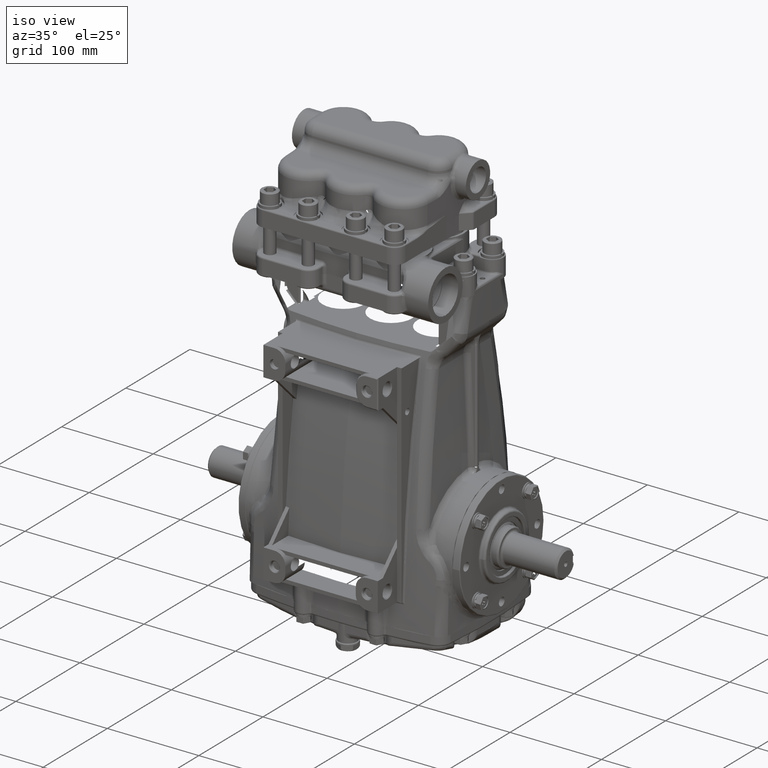
[diagram: clean part render]
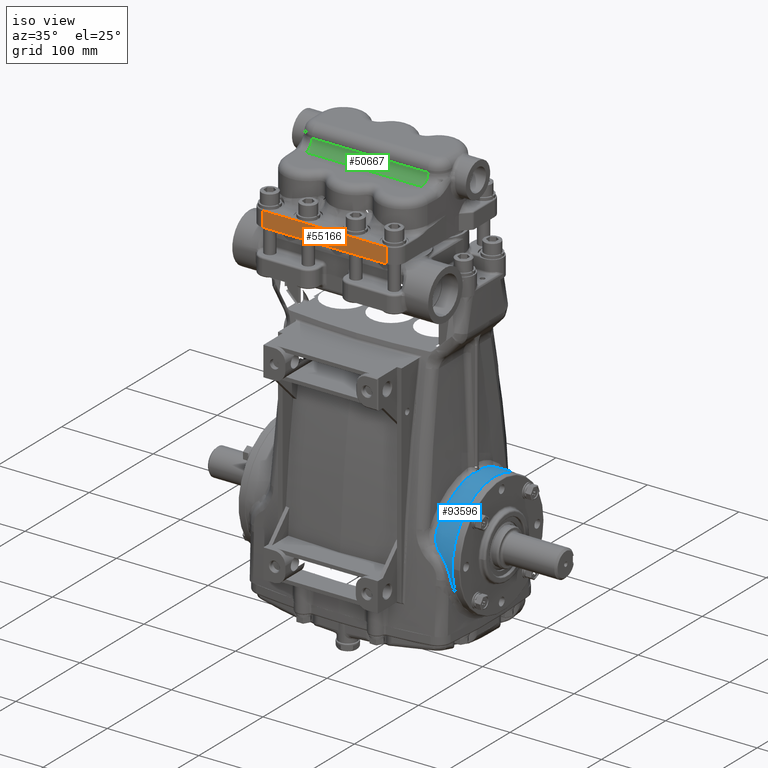
[diagram: same view with three faces highlighted in distinct colors, each labeled with its STEP entity id]
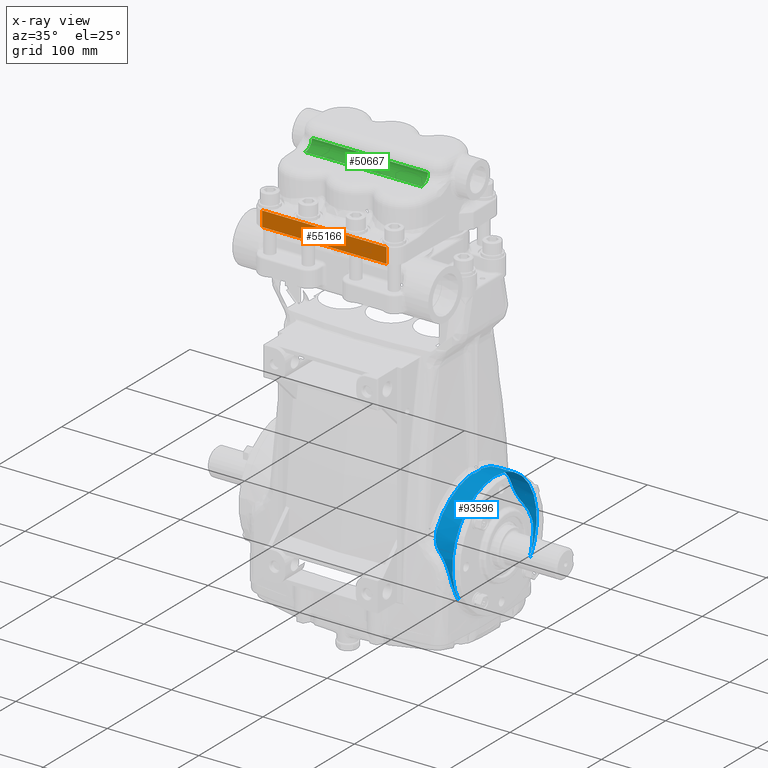
[diagram: x-ray of the same camera — body ghosted, the three highlighted faces saturated]
A machine part, iso view with three faces highlighted in distinct colors.
The next image is the same camera in x-ray (body ghosted, the three faces saturated) — at least one of them is partly hidden behind the body in this view.
Their STEP definitions:

[orange] entity #55166 — the highlighted planar face has unit normal (0, 1, 0).
#10311 = VERTEX_POINT ( 'NONE', #22771 ) ;
#12512 = DIRECTION ( 'NONE',  ( -0.000000000000000000, -0.000000000000000000, -1.000000000000000000 ) ) ;
#12684 = ORIENTED_EDGE ( 'NONE', *, *, #90015, .T. ) ;
#13723 = VERTEX_POINT ( 'NONE', #75783 ) ;
#13936 = VECTOR ( 'NONE', #12512, 39.37007874015748143 ) ;
#18706 = AXIS2_PLACEMENT_3D ( 'NONE', #65929, #65368, #31635 ) ;
#20758 = DIRECTION ( 'NONE',  ( 0.000000000000000000, -0.000000000000000000, -1.000000000000000000 ) ) ;
#22444 = DIRECTION ( 'NONE',  ( -1.000000000000000000, 0.000000000000000000, -0.000000000000000000 ) ) ;
#22771 = CARTESIAN_POINT ( 'NONE',  ( -2.677165354330708347, -4.094488188976377785, 11.94881889763779448 ) ) ;
#23007 = LINE ( 'NONE', #100765, #63014 ) ;
#23189 = LINE ( 'NONE', #93488, #13936 ) ;
#31635 = DIRECTION ( 'NONE',  ( 0.000000000000000000, -0.000000000000000000, 1.000000000000000000 ) ) ;
#33503 = DIRECTION ( 'NONE',  ( -1.000000000000000000, 0.000000000000000000, 0.000000000000000000 ) ) ;
#41197 = VERTEX_POINT ( 'NONE', #69911 ) ;
#42643 = LINE ( 'NONE', #101584, #94956 ) ;
#44732 = EDGE_CURVE ( 'NONE', #13723, #10311, #42643, .T. ) ;
#54540 = ORIENTED_EDGE ( 'NONE', *, *, #58980, .F. ) ;
#55166 = ADVANCED_FACE ( 'NONE', ( #74514 ), #73952, .F. ) ;
#56124 = CARTESIAN_POINT ( 'NONE',  ( 2.677165354330709679, -4.094488188976378673, 12.59842519685039441 ) ) ;
#58980 = EDGE_CURVE ( 'NONE', #102212, #13723, #108784, .T. ) ;
#60882 = EDGE_CURVE ( 'NONE', #41197, #10311, #23189, .T. ) ;
#61720 = VECTOR ( 'NONE', #20758, 39.37007874015748143 ) ;
#63014 = VECTOR ( 'NONE', #22444, 39.37007874015748143 ) ;
#65368 = DIRECTION ( 'NONE',  ( 0.000000000000000000, 1.000000000000000000, 0.000000000000000000 ) ) ;
#65929 = CARTESIAN_POINT ( 'NONE',  ( -2.677165354330708347, -4.094488188976377785, 12.65748031496063142 ) ) ;
#69677 = EDGE_LOOP ( 'NONE', ( #77068, #54540, #12684, #98051 ) ) ;
#69911 = CARTESIAN_POINT ( 'NONE',  ( -2.677165354330708347, -4.094488188976378673, 12.59842519685039441 ) ) ;
#73952 = PLANE ( 'NONE',  #18706 ) ;
#74514 = FACE_OUTER_BOUND ( 'NONE', #69677, .T. ) ;
#75783 = CARTESIAN_POINT ( 'NONE',  ( 2.677165354330709679, -4.094488188976377785, 11.94881889763779448 ) ) ;
#77068 = ORIENTED_EDGE ( 'NONE', *, *, #44732, .F. ) ;
#82471 = CARTESIAN_POINT ( 'NONE',  ( 2.677165354330709679, -4.094488188976378673, 12.65748031496063142 ) ) ;
#90015 = EDGE_CURVE ( 'NONE', #102212, #41197, #23007, .T. ) ;
#93488 = CARTESIAN_POINT ( 'NONE',  ( -2.677165354330708347, -4.094488188976378673, 12.65748031496063142 ) ) ;
#94956 = VECTOR ( 'NONE', #33503, 39.37007874015748143 ) ;
#98051 = ORIENTED_EDGE ( 'NONE', *, *, #60882, .T. ) ;
#100765 = CARTESIAN_POINT ( 'NONE',  ( -2.677165354330708347, -4.094488188976377785, 12.59842519685039441 ) ) ;
#101584 = CARTESIAN_POINT ( 'NONE',  ( -2.677165354330708347, -4.094488188976377785, 11.94881889763779448 ) ) ;
#102212 = VERTEX_POINT ( 'NONE', #56124 ) ;
#108784 = LINE ( 'NONE', #82471, #61720 ) ;

[blue] entity #93596 — the highlighted cylindrical surface (partial cylindrical patch) has radius 66 mm, axis along (-1, 0, 0).
#182 = CARTESIAN_POINT ( 'NONE',  ( 4.100196684445901241, -2.589612643860212060, 0.2166756735980352178 ) ) ;
#694 = CARTESIAN_POINT ( 'NONE',  ( 3.729207990982170262, -0.1660319427924202007, 2.593125323950942640 ) ) ;
#1036 = CARTESIAN_POINT ( 'NONE',  ( 3.673228346456693494, 0.2744815348785626941, 2.583887263530999956 ) ) ;
#1519 = ORIENTED_EDGE ( 'NONE', *, *, #95249, .F. ) ;
#1995 = CARTESIAN_POINT ( 'NONE',  ( 3.569998761272071164, 2.310138649027040803, 1.189645554974915642 ) ) ;
#2507 = CARTESIAN_POINT ( 'NONE',  ( 3.615937601670871970, 1.863495899834478386, 1.819654820687257368 ) ) ;
#2570 = CARTESIAN_POINT ( 'NONE',  ( 3.571504997201039089, 2.303905351523054090, 1.201672563993209097 ) ) ;
#2782 = ORIENTED_EDGE ( 'NONE', *, *, #75394, .F. ) ;
#3271 = CARTESIAN_POINT ( 'NONE',  ( 4.259151532516346705, 2.594823161770012376, -0.1427273984997916856 ) ) ;
#4825 = CARTESIAN_POINT ( 'NONE',  ( 3.820601957732636222, -2.545106093148461923, 0.5240979178874840549 ) ) ;
#5329 = B_SPLINE_CURVE_WITH_KNOTS ( 'NONE', 3,
 ( #108233, #100213, #55614, #64752 ),
 .UNSPECIFIED., .F., .F.,
 ( 4, 4 ),
 ( 0.000000000000000000, 0.009106805431550311913 ),
 .UNSPECIFIED. ) ;
#5550 = CARTESIAN_POINT ( 'NONE',  ( 4.364242892514783811, 2.452315658477773219, -0.8608875450073603108 ) ) ;
#5766 = B_SPLINE_CURVE_WITH_KNOTS ( 'NONE', 3,
 ( #78489, #103115, #24771, #86522, #76799, #25896, #8212, #95667, #43037, #77929, #69896, #112831, #182, #104814, #61335, #96233 ),
 .UNSPECIFIED., .F., .F.,
 ( 4, 2, 2, 2, 2, 2, 2, 4 ),
 ( 0.000000000000000000, 0.003364075041212588688, 0.005046112561818888453, 0.006728150082425187785, 0.01345630016485038251, 0.01682037520606298117, 0.02018445024727557463, 0.02691260032970074073 ),
 .UNSPECIFIED. ) ;
#6234 = VERTEX_POINT ( 'NONE', #77175 ) ;
#6656 = CARTESIAN_POINT ( 'NONE',  ( 4.390738189973322214, -2.488689730956064050, -0.7507419051582839842 ) ) ;
#6976 = AXIS2_PLACEMENT_3D ( 'NONE', #65132, #38244, #82299 ) ;
#7042 = CARTESIAN_POINT ( 'NONE',  ( 3.740157480314960647, -0.1056473844594978673, 2.596276590385522720 ) ) ;
#7142 = CARTESIAN_POINT ( 'NONE',  ( 3.573063166374628619, 2.297581499945722694, 1.213644410333674317 ) ) ;
#7279 = CARTESIAN_POINT ( 'NONE',  ( 3.573063166374628619, 2.297581499945722694, 1.213644410333674317 ) ) ;
#7308 = CARTESIAN_POINT ( 'NONE',  ( 4.405457163438915913, 2.344418739382989170, -1.120497335140465678 ) ) ;
#8212 = CARTESIAN_POINT ( 'NONE',  ( 4.309920876329000450, -2.587576788733757294, -0.2381237315474997451 ) ) ;
#8460 = CARTESIAN_POINT ( 'NONE',  ( 3.670475184629838683, -0.2748215353789708604, 2.583851123288443574 ) ) ;
#8717 = ORIENTED_EDGE ( 'NONE', *, *, #13009, .F. ) ;
#9019 = CARTESIAN_POINT ( 'NONE',  ( 2.491824567246672117, -0.2744815348785626941, 2.583887263530999956 ) ) ;
#9418 = VERTEX_POINT ( 'NONE', #7308 ) ;
#10033 = B_SPLINE_CURVE_WITH_KNOTS ( 'NONE', 3,
 ( #48985, #33528, #51268, #5550, #40384, #77559, #68410, #67270 ),
 .UNSPECIFIED., .F., .F.,
 ( 4, 2, 2, 4 ),
 ( 3.067469883233882672E-16, 0.008631008678426537947, 0.01294651301763963779, 0.01726201735685273936 ),
 .UNSPECIFIED. ) ;
#10582 = CARTESIAN_POINT ( 'NONE',  ( 3.568541530439711007, 2.316279602479301314, 1.177566264277869701 ) ) ;
#11097 = CARTESIAN_POINT ( 'NONE',  ( 3.603878585297783932, 2.091714425865752514, 1.541604444808107210 ) ) ;
#11162 = ORIENTED_EDGE ( 'NONE', *, *, #93903, .F. ) ;
#11530 = CARTESIAN_POINT ( 'NONE',  ( 3.673228346456693494, -0.2744815348785626941, 2.583887263530999956 ) ) ;
#11871 = CARTESIAN_POINT ( 'NONE',  ( 4.272297807952499582, 2.592245388797254968, -0.1838876951782988378 ) ) ;
#11877 = CARTESIAN_POINT ( 'NONE',  ( 3.681145462730793128, 0.2614638144021342869, 2.585270111748652067 ) ) ;
#12024 = CARTESIAN_POINT ( 'NONE',  ( 4.448740742023628236, 2.168936661308856539, -1.430918486201019801 ) ) ;
#12292 = CARTESIAN_POINT ( 'NONE',  ( 4.353619064469325117, -2.554787156879658294, -0.4742110149182088841 ) ) ;
#12833 = CARTESIAN_POINT ( 'NONE',  ( 3.601626860777447092, 2.458690778216942263, 0.8413739690559214335 ) ) ;
#12839 = VERTEX_POINT ( 'NONE', #52304 ) ;
#12972 = CARTESIAN_POINT ( 'NONE',  ( 4.417744967900954833, -2.416368676802738591, -0.9583070614932144293 ) ) ;
#12996 = CARTESIAN_POINT ( 'NONE',  ( 4.030345152111118878, 2.584141206895580023, 0.2725950478743667249 ) ) ;
#13009 = EDGE_CURVE ( 'NONE', #109135, #31369, #59504, .T. ) ;
#13356 = CARTESIAN_POINT ( 'NONE',  ( 3.634981356782269746, 1.483867568071156828, 2.133538114731842850 ) ) ;
#13401 = CARTESIAN_POINT ( 'NONE',  ( 3.640645536112663727, 2.489835945430678432, 0.7435112644587360542 ) ) ;
#13421 = DIRECTION ( 'NONE',  ( 1.000000000000000000, -0.000000000000000000, -2.542649619626401295E-33 ) ) ;
#13563 = CARTESIAN_POINT ( 'NONE',  ( 3.879585688250994036, 2.562759641923008314, 0.4290413981863067105 ) ) ;
#13963 = CARTESIAN_POINT ( 'NONE',  ( 3.633338405893422163, 2.484961283390371811, 0.7596518797531165434 ) ) ;
#15334 = CARTESIAN_POINT ( 'NONE',  ( 3.603556856310851320, -2.097800067963866866, 1.534276460122554697 ) ) ;
#15340 = VERTEX_POINT ( 'NONE', #38737 ) ;
#15499 = EDGE_CURVE ( 'NONE', #67188, #61127, #72737, .T. ) ;
#15515 = EDGE_CURVE ( 'NONE', #66623, #61127, #80826, .T. ) ;
#15721 = CARTESIAN_POINT ( 'NONE',  ( 3.603878585297783932, 2.091714425865752514, 1.541604444808107210 ) ) ;
#16791 = CARTESIAN_POINT ( 'NONE',  ( 3.670471774727911640, 0.2747079526588498410, 2.583863204080399267 ) ) ;
#17040 = CARTESIAN_POINT ( 'NONE',  ( 3.670476271397138390, -0.2747080088181723112, 2.583863198110968984 ) ) ;
#17598 = CARTESIAN_POINT ( 'NONE',  ( 3.670495455403631091, -0.2744815348785626385, 2.583887263530999068 ) ) ;
#17633 = ORIENTED_EDGE ( 'NONE', *, *, #31383, .F. ) ;
#19898 = CARTESIAN_POINT ( 'NONE',  ( 3.689112639904768454, 0.2483558111345762209, 2.586563455988156957 ) ) ;
#20245 = CARTESIAN_POINT ( 'NONE',  ( 3.655944935535329954, 0.9744078039108871048, 2.415511249334948651 ) ) ;
#20307 = CARTESIAN_POINT ( 'NONE',  ( 3.723048693749664739, -2.514720828230314176, 0.6561849085283438798 ) ) ;
#20427 = ORIENTED_EDGE ( 'NONE', *, *, #57870, .F. ) ;
#20452 = CARTESIAN_POINT ( 'NONE',  ( 4.228143448548316030, 2.597781430396293612, -0.06121953256511413616 ) ) ;
#20459 = CARTESIAN_POINT ( 'NONE',  ( 3.740157480314960203, 0.1212080587885420307, 2.595643397239084660 ) ) ;
#20759 = CARTESIAN_POINT ( 'NONE',  ( 3.593256080687021736, -2.323414356206366715, 1.163425645669357467 ) ) ;
#21095 = ORIENTED_EDGE ( 'NONE', *, *, #48336, .F. ) ;
#21236 = CARTESIAN_POINT ( 'NONE',  ( 3.670490955410431244, 0.2744815348785627496, 2.583887263530999068 ) ) ;
#21438 = CARTESIAN_POINT ( 'NONE',  ( 3.593215959287347605, -2.337118674269881957, 1.135645105658451559 ) ) ;
#22130 = CARTESIAN_POINT ( 'NONE',  ( 4.043859667664691848, 2.585874968461342682, 0.2556622840049984635 ) ) ;
#22204 = CARTESIAN_POINT ( 'NONE',  ( 3.608797278477070769, -1.996987595443408869, 1.662707763832500962 ) ) ;
#23666 = CARTESIAN_POINT ( 'NONE',  ( 4.448818897637796255, 0.000000000000000000, -4.975950889780015573E-33 ) ) ;
#23770 = EDGE_CURVE ( 'NONE', #24850, #28203, #5766, .T. ) ;
#23979 = CARTESIAN_POINT ( 'NONE',  ( 3.594344271676254809, -2.372128933810800255, 1.063595192392042588 ) ) ;
#24063 = CARTESIAN_POINT ( 'NONE',  ( 3.698469820200339875, -2.500921098275114662, 0.7051291823697297678 ) ) ;
#24073 = ORIENTED_EDGE ( 'NONE', *, *, #25313, .F. ) ;
#24398 = EDGE_CURVE ( 'NONE', #70978, #15340, #38318, .T. ) ;
#24449 = CARTESIAN_POINT ( 'NONE',  ( 3.637196629049834762, -1.436362944010388665, 2.166010019197216252 ) ) ;
#24771 = CARTESIAN_POINT ( 'NONE',  ( 4.342672867087804534, -2.569687036748243170, -0.3878214363383842844 ) ) ;
#24850 = VERTEX_POINT ( 'NONE', #12292 ) ;
#25313 = EDGE_CURVE ( 'NONE', #45155, #67188, #106398, .T. ) ;
#25896 = CARTESIAN_POINT ( 'NONE',  ( 4.315444715464910708, -2.585548254423247094, -0.2592528909293658201 ) ) ;
#26903 = CARTESIAN_POINT ( 'NONE',  ( 4.448701682289233794, 2.169306459177661406, -1.430357644016728047 ) ) ;
#26908 = EDGE_CURVE ( 'NONE', #89741, #66623, #97024, .T. ) ;
#27872 = CARTESIAN_POINT ( 'NONE',  ( 3.711377638195007655, 0.2083353980370834801, 2.590097324958573921 ) ) ;
#28022 = CARTESIAN_POINT ( 'NONE',  ( 4.448779813818786621, 2.168566653782531883, -1.431479173088408663 ) ) ;
#28203 = VERTEX_POINT ( 'NONE', #92026 ) ;
#28429 = CARTESIAN_POINT ( 'NONE',  ( 4.326348539405920235, 2.553922368995673597, -0.4788465691330958118 ) ) ;
#30480 = EDGE_CURVE ( 'NONE', #75103, #12839, #47451, .T. ) ;
#30662 = ORIENTED_EDGE ( 'NONE', *, *, #57067, .T. ) ;
#30755 = CARTESIAN_POINT ( 'NONE',  ( 3.651015978876352541, -1.106105267301860096, 2.353733749801323771 ) ) ;
#31101 = CARTESIAN_POINT ( 'NONE',  ( 3.802754277052101006, -2.540700923841851644, 0.5451109746952036428 ) ) ;
#31369 = VERTEX_POINT ( 'NONE', #47100 ) ;
#31383 = EDGE_CURVE ( 'NONE', #100856, #70978, #78437, .T. ) ;
#31853 = VERTEX_POINT ( 'NONE', #41214 ) ;
#31884 = CARTESIAN_POINT ( 'NONE',  ( 3.669288470711745465, -0.3828501925161444941, 2.570643288209449207 ) ) ;
#31930 = ORIENTED_EDGE ( 'NONE', *, *, #89719, .F. ) ;
#32919 = CARTESIAN_POINT ( 'NONE',  ( 4.379910414676081665, -2.507877754450474228, -0.6799725526515435492 ) ) ;
#33019 = CARTESIAN_POINT ( 'NONE',  ( 3.626722219009550496, -1.654146143264449087, 2.006787416531376156 ) ) ;
#33300 = CARTESIAN_POINT ( 'NONE',  ( 3.740157480314960647, 0.1056473844594978673, 2.596276590385522720 ) ) ;
#33352 = EDGE_CURVE ( 'NONE', #112494, #45155, #65835, .T. ) ;
#33528 = CARTESIAN_POINT ( 'NONE',  ( 4.334556011425961586, 2.532905357242881461, -0.5909405464212091896 ) ) ;
#33636 = VERTEX_POINT ( 'NONE', #7279 ) ;
#34136 = DIRECTION ( 'NONE',  ( 1.000000000000000000, 0.000000000000000000, 0.000000000000000000 ) ) ;
#35887 = CARTESIAN_POINT ( 'NONE',  ( 3.704213968464435514, 0.2218105033577431329, 2.588974936413617201 ) ) ;
#36066 = EDGE_CURVE ( 'NONE', #36757, #104311, #97959, .T. ) ;
#36134 = CARTESIAN_POINT ( 'NONE',  ( 3.670470685414446876, 0.2748214511534086690, 2.583851132246775428 ) ) ;
#36576 = CARTESIAN_POINT ( 'NONE',  ( 4.448818897637796255, 2.168196436623980539, -1.432039704700285965 ) ) ;
#36757 = VERTEX_POINT ( 'NONE', #33300 ) ;
#37909 = CARTESIAN_POINT ( 'NONE',  ( 3.626234562037653930, 1.663463688183235645, 1.998171375183733334 ) ) ;
#38244 = DIRECTION ( 'NONE',  ( -1.000000000000000000, 0.000000000000000000, 2.542649619626401295E-33 ) ) ;
#38318 = B_SPLINE_CURVE_WITH_KNOTS ( 'NONE', 3,
 ( #13563, #74130, #98757, #98199, #82723, #12996, #22130, #38663, #48398, #81590, #73001, #20452, #73564, #3271, #11871, #83294, #64994, #28429 ),
 .UNSPECIFIED., .F., .F.,
 ( 4, 2, 2, 2, 2, 2, 2, 2, 4 ),
 ( 2.088883680402604765E-17, 0.003329613481936359240, 0.004994420222904513706, 0.006659226963872669040, 0.01331845392774529124, 0.01498326066871345612, 0.01664806740968161752, 0.01997768089161794380, 0.02663690785549060330 ),
 .UNSPECIFIED. ) ;
#38458 = CARTESIAN_POINT ( 'NONE',  ( 3.636727491018252323, 1.446376487363742358, 2.159130358320855425 ) ) ;
#38663 = CARTESIAN_POINT ( 'NONE',  ( 4.109170774626334399, 2.593809410016075567, 0.1695614512454263478 ) ) ;
#38737 = CARTESIAN_POINT ( 'NONE',  ( 4.326348539405920235, 2.553922368995673597, -0.4788465691330958118 ) ) ;
#38833 = EDGE_CURVE ( 'NONE', #109135, #75103, #89427, .T. ) ;
#39024 = CARTESIAN_POINT ( 'NONE',  ( 3.670470685414446876, 0.2748214511534086690, 2.583851132246775428 ) ) ;
#39308 = CARTESIAN_POINT ( 'NONE',  ( 3.645306115665337465, -1.250059341902741927, 2.278616823046081485 ) ) ;
#39678 = EDGE_CURVE ( 'NONE', #101533, #92194, #77075, .T. ) ;
#40190 = CARTESIAN_POINT ( 'NONE',  ( 3.824083908524778419, 2.554608712357848255, 0.4777287123290744897 ) ) ;
#40384 = CARTESIAN_POINT ( 'NONE',  ( 4.371321160798466998, 2.433119286762702504, -0.9137311546624254932 ) ) ;
#41007 = CARTESIAN_POINT ( 'NONE',  ( 3.593256080687021736, -2.323414356206366715, 1.163425645669357467 ) ) ;
#41214 = CARTESIAN_POINT ( 'NONE',  ( 4.448818897637796255, 2.168196436623980539, -1.432039704700285965 ) ) ;
#41254 = CARTESIAN_POINT ( 'NONE',  ( 4.369543268449606721, -2.526249491940417702, -0.6122138297707925281 ) ) ;
#41583 = CARTESIAN_POINT ( 'NONE',  ( 3.609723164454232691, -1.979407610543248097, 1.683596906376970681 ) ) ;
#41866 = CARTESIAN_POINT ( 'NONE',  ( 3.723842885598535712, -0.1804287182431874303, 2.592163387862777224 ) ) ;
#43037 = CARTESIAN_POINT ( 'NONE',  ( 4.249067235271192899, -2.599105438015300695, -0.05179047695597210205 ) ) ;
#44100 = CARTESIAN_POINT ( 'NONE',  ( 3.737658590624322930, -0.1363432915490416786, 2.594888436529718678 ) ) ;
#44531 = CARTESIAN_POINT ( 'NONE',  ( 4.441335003962021410, -2.239086792710365703, -1.324707333291055500 ) ) ;
#45155 = VERTEX_POINT ( 'NONE', #21438 ) ;
#45402 = CARTESIAN_POINT ( 'NONE',  ( 3.560586305643520966, 2.349803917289821076, 1.111623744575743977 ) ) ;
#45423 = CARTESIAN_POINT ( 'NONE',  ( 3.568541530439711007, 2.316279602479301314, 1.177566264277869701 ) ) ;
#46134 = CARTESIAN_POINT ( 'NONE',  ( 3.740157480314960647, 0.1056473844594978673, 2.596276590385522720 ) ) ;
#46266 = FACE_OUTER_BOUND ( 'NONE', #61948, .T. ) ;
#46488 = CARTESIAN_POINT ( 'NONE',  ( 3.629742869282844620, 1.593595646592256720, 2.054362137167845326 ) ) ;
#46675 = B_SPLINE_CURVE_WITH_KNOTS ( 'NONE', 3,
 ( #7042, #87587, #44100, #78995, #694, #41866, #76751, #54951, #97296, #11530 ),
 .UNSPECIFIED., .F., .F.,
 ( 4, 2, 2, 2, 4 ),
 ( 0.000000000000000000, 0.001170341938333961836, 0.001755512907500948174, 0.002340683876667934513, 0.004681367753335838669 ),
 .UNSPECIFIED. ) ;
#46957 = EDGE_CURVE ( 'NONE', #98210, #31853, #86610, .T. ) ;
#47060 = CARTESIAN_POINT ( 'NONE',  ( 3.668336950252987450, 0.4534554124322341950, 2.560143726414654264 ) ) ;
#47100 = CARTESIAN_POINT ( 'NONE',  ( 3.603878585297783932, 2.091714425865752514, 1.541604444808107210 ) ) ;
#47394 = CYLINDRICAL_SURFACE ( 'NONE', #6976, 2.598425196850393970 ) ;
#47451 = LINE ( 'NONE', #56622, #50533 ) ;
#47620 = CARTESIAN_POINT ( 'NONE',  ( 3.662905022307881620, 0.7173363818742936049, 2.497858010012441010 ) ) ;
#47665 = CARTESIAN_POINT ( 'NONE',  ( 3.664767887156565873, 2.503663795311541485, 0.6955187020853752511 ) ) ;
#48181 = CARTESIAN_POINT ( 'NONE',  ( 3.670475184629838683, -0.2748215353789708604, 2.583851123288443574 ) ) ;
#48253 = CARTESIAN_POINT ( 'NONE',  ( 3.858377167790970397, -2.553147751476065430, 0.4834048117759467966 ) ) ;
#48336 = EDGE_CURVE ( 'NONE', #92194, #24850, #100075, .T. ) ;
#48398 = CARTESIAN_POINT ( 'NONE',  ( 4.154254249965901202, 2.597816456634995941, 0.09612698171101012601 ) ) ;
#48468 = CARTESIAN_POINT ( 'NONE',  ( 3.639263670467879130, -1.390822149596918189, 2.195541294234112151 ) ) ;
#48796 = CARTESIAN_POINT ( 'NONE',  ( 3.583104735200953961, 2.434819547879252699, 0.9081433080516650991 ) ) ;
#48985 = CARTESIAN_POINT ( 'NONE',  ( 4.326348539405920235, 2.553922368995673597, -0.4788465691330958118 ) ) ;
#49503 = CARTESIAN_POINT ( 'NONE',  ( 4.400917026694635581, -2.466565069195522764, -0.8205161581380707725 ) ) ;
#49697 = CARTESIAN_POINT ( 'NONE',  ( 3.681552310230141956, -2.490873522378492577, 0.7400714024969284877 ) ) ;
#50070 = CARTESIAN_POINT ( 'NONE',  ( 4.424414708075002700, -2.388298638714172473, -1.026321929577004965 ) ) ;
#50175 = CARTESIAN_POINT ( 'NONE',  ( 3.606114213967757109, -2.048290645341971139, 1.599080331075859007 ) ) ;
#50268 = CARTESIAN_POINT ( 'NONE',  ( 3.628799686091390697, -2.443995301967832212, 0.8832805644669512457 ) ) ;
#50533 = VECTOR ( 'NONE', #82353, 39.37007874015748143 ) ;
#50566 = CARTESIAN_POINT ( 'NONE',  ( 3.599941549144323183, 2.168804897380782748, 1.437004816863434176 ) ) ;
#50748 = CARTESIAN_POINT ( 'NONE',  ( 3.601956317453527401, -2.129377328862210206, 1.490136455154350337 ) ) ;
#51268 = CARTESIAN_POINT ( 'NONE',  ( 4.344922806512202307, 2.504766817125810618, -0.7004430717772271997 ) ) ;
#51359 = CARTESIAN_POINT ( 'NONE',  ( 4.379910414676081665, -2.507877754450474228, -0.6799725526515435492 ) ) ;
#52304 = CARTESIAN_POINT ( 'NONE',  ( 3.673228346456693494, 0.2744815348785626941, 2.583887263530999956 ) ) ;
#52462 = DIRECTION ( 'NONE',  ( -1.000000000000000000, 0.000000000000000000, 2.542649619626400953E-33 ) ) ;
#52984 = CARTESIAN_POINT ( 'NONE',  ( 3.740157480314960647, -0.1056473844594978673, 2.596276590385522720 ) ) ;
#53131 = CARTESIAN_POINT ( 'NONE',  ( 3.879585688250994036, 2.562759641923008314, 0.4290413981863067105 ) ) ;
#54141 = CARTESIAN_POINT ( 'NONE',  ( 4.427997831862573008, -2.357105485749152685, -1.093557146507788902 ) ) ;
#54527 = CARTESIAN_POINT ( 'NONE',  ( 3.650037390469145659, 1.137680133007174410, 2.343004368678390126 ) ) ;
#54951 = CARTESIAN_POINT ( 'NONE',  ( 3.705041935889737292, -0.2222337800680615205, 2.589054418856094664 ) ) ;
#55148 = CARTESIAN_POINT ( 'NONE',  ( 3.698469820200339875, -2.500921098275114662, 0.7051291823697297678 ) ) ;
#55614 = CARTESIAN_POINT ( 'NONE',  ( 4.441734629707874582, 2.235266999771174934, -1.330320686575414246 ) ) ;
#56266 = CARTESIAN_POINT ( 'NONE',  ( 3.691512741896217253, 2.516444316843351015, 0.6483688371313504062 ) ) ;
#56442 = VECTOR ( 'NONE', #52462, 39.37007874015748143 ) ;
#56622 = CARTESIAN_POINT ( 'NONE',  ( 2.491824567246672117, 0.2744815348785626941, 2.583887263530999956 ) ) ;
#56829 = CARTESIAN_POINT ( 'NONE',  ( 3.613026557058596655, 2.469704603081441796, 0.8084138148767565646 ) ) ;
#57067 = EDGE_CURVE ( 'NONE', #12839, #36757, #97184, .T. ) ;
#57619 = CARTESIAN_POINT ( 'NONE',  ( 3.663427098084325095, -0.7026035787030312507, 2.503993430524140695 ) ) ;
#57870 = EDGE_CURVE ( 'NONE', #33636, #100856, #85526, .T. ) ;
#58759 = CARTESIAN_POINT ( 'NONE',  ( 3.597525261063599267, -2.219855369366478204, 1.354924161281046313 ) ) ;
#58851 = CARTESIAN_POINT ( 'NONE',  ( 3.593215959287347605, -2.337118674269881957, 1.135645105658451559 ) ) ;
#59423 = CARTESIAN_POINT ( 'NONE',  ( 3.666262919929171638, -2.480069968409950754, 0.7755059877725468676 ) ) ;
#59504 = B_SPLINE_CURVE_WITH_KNOTS ( 'NONE', 3,
 ( #39024, #80815, #47060, #73367, #81955, #47620, #73923, #20245, #54527, #91110, #100247, #38458, #13356, #46488, #37909, #2507, #108264, #11097 ),
 .UNSPECIFIED., .F., .F.,
 ( 4, 2, 2, 2, 2, 2, 2, 2, 4 ),
 ( 0.004478642530472779978, 0.01134371593907524019, 0.01477625264337648070, 0.01820878934767771948, 0.03193893616488270581, 0.03537147286918396194, 0.03880400957348521807, 0.04566908298208770950, 0.05939922979929268543 ),
 .UNSPECIFIED. ) ;
#61127 = VERTEX_POINT ( 'NONE', #48181 ) ;
#61307 = EDGE_CURVE ( 'NONE', #104311, #89741, #46675, .T. ) ;
#61335 = CARTESIAN_POINT ( 'NONE',  ( 3.964157148019598509, -2.570308815517636791, 0.3858928608672408944 ) ) ;
#61566 = ORIENTED_EDGE ( 'NONE', *, *, #36066, .T. ) ;
#61948 = EDGE_LOOP ( 'NONE', ( #88960, #30662, #61566, #62869, #102623, #106808, #67029, #24073, #64673, #85431, #103727, #21095, #74389, #2782, #11162, #63723, #103186, #1519, #93507, #17633, #20427, #31930, #8717, #95823 ) ) ;
#62195 = CARTESIAN_POINT ( 'NONE',  ( 3.720882177605854046, 0.1874859733347170043, 2.591661838518134697 ) ) ;
#62758 = CARTESIAN_POINT ( 'NONE',  ( 3.729207764342290066, 0.1660326122728837672, 2.593125281288485517 ) ) ;
#62839 = CARTESIAN_POINT ( 'NONE',  ( 4.427997831862573008, -2.357105485749152685, -1.093557146507788902 ) ) ;
#62869 = ORIENTED_EDGE ( 'NONE', *, *, #61307, .T. ) ;
#63723 = ORIENTED_EDGE ( 'NONE', *, *, #46957, .F. ) ;
#63734 = CARTESIAN_POINT ( 'NONE',  ( 3.878328999386245535, -2.556784752471215505, 0.4637130449769727991 ) ) ;
#64673 = ORIENTED_EDGE ( 'NONE', *, *, #33352, .F. ) ;
#64752 = CARTESIAN_POINT ( 'NONE',  ( 4.448701682289233794, 2.169306459177661406, -1.430357644016728047 ) ) ;
#64994 = CARTESIAN_POINT ( 'NONE',  ( 4.320059408560749326, 2.570027052210612339, -0.3929524365246593876 ) ) ;
#65132 = CARTESIAN_POINT ( 'NONE',  ( 2.491824567246672117, 0.000000000000000000, 0.000000000000000000 ) ) ;
#65383 = CARTESIAN_POINT ( 'NONE',  ( 3.879585688250994036, 2.562759641923008314, 0.4290413981863067105 ) ) ;
#65617 = CARTESIAN_POINT ( 'NONE',  ( 3.606992761978052631, -2.031429985146813166, 1.620447092536544398 ) ) ;
#65835 = B_SPLINE_CURVE_WITH_KNOTS ( 'NONE', 3,
 ( #75999, #104582, #49697, #59423, #94862, #102884, #50268, #78261, #23979, #58851 ),
 .UNSPECIFIED., .F., .F.,
 ( 4, 2, 2, 2, 4 ),
 ( 0.000000000000000000, 0.001526827248405049266, 0.003053654496810098533, 0.006107308993620222219, 0.01221461798724049648 ),
 .UNSPECIFIED. ) ;
#65964 = DIRECTION ( 'NONE',  ( 0.000000000000000000, 0.000000000000000000, -1.000000000000000000 ) ) ;
#66623 = VERTEX_POINT ( 'NONE', #108504 ) ;
#66749 = CARTESIAN_POINT ( 'NONE',  ( 3.669957121584705995, -0.3289397590504139490, 2.578095043463518810 ) ) ;
#66833 = AXIS2_PLACEMENT_3D ( 'NONE', #85049, #34136, #76461 ) ;
#67029 = ORIENTED_EDGE ( 'NONE', *, *, #15499, .F. ) ;
#67082 = CARTESIAN_POINT ( 'NONE',  ( 3.711122986078326580, 2.523998121534075878, 0.6181706260319980162 ) ) ;
#67188 = VERTEX_POINT ( 'NONE', #20759 ) ;
#67270 = CARTESIAN_POINT ( 'NONE',  ( 4.405457163438915913, 2.344418739382989170, -1.120497335140465678 ) ) ;
#67785 = CARTESIAN_POINT ( 'NONE',  ( 4.427997831862573008, -2.357105485749152685, -1.093557146507788902 ) ) ;
#68106 = CARTESIAN_POINT ( 'NONE',  ( 3.593085075782918913, -2.328037568962693094, 1.154192877825681363 ) ) ;
#68410 = CARTESIAN_POINT ( 'NONE',  ( 4.395710153891340788, 2.368720919798768421, -1.069649836098910178 ) ) ;
#69896 = CARTESIAN_POINT ( 'NONE',  ( 4.170134140482714358, -2.596556851026767365, 0.1054417126705039648 ) ) ;
#70508 = CARTESIAN_POINT ( 'NONE',  ( 3.673228346456693494, -0.2744815348785626941, 2.583887263530999956 ) ) ;
#70766 = CARTESIAN_POINT ( 'NONE',  ( 3.731622011144512197, 0.1586548781171605305, 2.593587791340917992 ) ) ;
#70978 = VERTEX_POINT ( 'NONE', #53131 ) ;
#71395 = CARTESIAN_POINT ( 'NONE',  ( 4.434308067287227928, -2.302171257819882744, -1.211965014282218256 ) ) ;
#72737 = B_SPLINE_CURVE_WITH_KNOTS ( 'NONE', 3,
 ( #41007, #109677, #58759, #50748, #15334, #50175, #65617, #22204, #41583, #76474, #83927, #33019, #109117, #24449, #48468, #85632, #39308, #30755, #74205, #101087, #57619, #75323, #110238, #31884, #66749, #113060 ),
 .UNSPECIFIED., .F., .F.,
 ( 4, 2, 2, 2, 2, 2, 2, 2, 2, 2, 2, 2, 4 ),
 ( 0.000000000000000000, 0.008267328861780734450, 0.01240099329267109647, 0.01446782550811626968, 0.01653465772356144114, 0.02480198658534213396, 0.03306931544712281984, 0.03720297987801315931, 0.04133664430890349878, 0.04960397317068417772, 0.05787130203246486360, 0.06200496646335520307, 0.06613863089424554254 ),
 .UNSPECIFIED. ) ;
#73001 = CARTESIAN_POINT ( 'NONE',  ( 4.210900935580806248, 2.598417092369814441, -0.02109040918785480556 ) ) ;
#73367 = CARTESIAN_POINT ( 'NONE',  ( 3.665854766938503762, 0.5858488389497600313, 2.531922331621285771 ) ) ;
#73564 = CARTESIAN_POINT ( 'NONE',  ( 4.236307921559897771, 2.597224659836159244, -0.08157071683126047856 ) ) ;
#73923 = CARTESIAN_POINT ( 'NONE',  ( 3.661808011293692822, 0.7605909360805160890, 2.485022517071347803 ) ) ;
#74130 = CARTESIAN_POINT ( 'NONE',  ( 3.912304473366188251, 2.567564686270180196, 0.4003398001991730348 ) ) ;
#74205 = CARTESIAN_POINT ( 'NONE',  ( 3.654527724870376915, -1.007663759877733378, 2.397501663341217171 ) ) ;
#74389 = ORIENTED_EDGE ( 'NONE', *, *, #39678, .F. ) ;
#75103 = VERTEX_POINT ( 'NONE', #21236 ) ;
#75323 = CARTESIAN_POINT ( 'NONE',  ( 3.666698041130799002, -0.5438739510423905577, 2.541450368456245279 ) ) ;
#75394 = EDGE_CURVE ( 'NONE', #6234, #101533, #90423, .T. ) ;
#75665 = CARTESIAN_POINT ( 'NONE',  ( 3.656347090002554534, 2.499181045191130046, 0.7114675951110329688 ) ) ;
#75999 = CARTESIAN_POINT ( 'NONE',  ( 3.698469820200339875, -2.500921098275114662, 0.7051291823697297678 ) ) ;
#76078 = EDGE_CURVE ( 'NONE', #28203, #112494, #83322, .T. ) ;
#76399 = CIRCLE ( 'NONE', #109294, 2.598425196850393970 ) ;
#76461 = DIRECTION ( 'NONE',  ( 0.000000000000000000, 0.000000000000000000, 1.000000000000000000 ) ) ;
#76474 = CARTESIAN_POINT ( 'NONE',  ( 3.614430106924039432, -1.890233480161720658, 1.786242801381924705 ) ) ;
#76751 = CARTESIAN_POINT ( 'NONE',  ( 3.720882557651651545, -0.1874850877914302216, 2.591661902391256156 ) ) ;
#76775 = CARTESIAN_POINT ( 'NONE',  ( 3.568541530439711007, 2.316279602479301314, 1.177566264277869701 ) ) ;
#76799 = CARTESIAN_POINT ( 'NONE',  ( 4.325591167454761354, -2.580925508126419743, -0.3018200770471060612 ) ) ;
#77075 = B_SPLINE_CURVE_WITH_KNOTS ( 'NONE', 3,
 ( #67785, #50070, #12972, #49503, #6656, #32919 ),
 .UNSPECIFIED., .F., .F.,
 ( 4, 2, 4 ),
 ( 0.000000000000000000, 0.005623919262235085870, 0.01124783852447017174 ),
 .UNSPECIFIED. ) ;
#77175 = CARTESIAN_POINT ( 'NONE',  ( 4.448818897637796255, -2.168196436624624024, -1.432039704699310967 ) ) ;
#77273 = CARTESIAN_POINT ( 'NONE',  ( 4.360915569307031170, -2.541904886276100672, -0.5436135771828035645 ) ) ;
#77559 = CARTESIAN_POINT ( 'NONE',  ( 4.387058915117058255, 2.391322275982766143, -1.018111908881324412 ) ) ;
#77819 = CARTESIAN_POINT ( 'NONE',  ( 3.593256080687021736, -2.323414356206366715, 1.163425645669357467 ) ) ;
#77928 = CARTESIAN_POINT ( 'NONE',  ( 3.670478550067949097, 0.2745943677930371418, 2.583875277500498946 ) ) ;
#77929 = CARTESIAN_POINT ( 'NONE',  ( 4.191375594372803270, -2.597873742594688284, 0.06648291595088408334 ) ) ;
#77974 = EDGE_CURVE ( 'NONE', #9418, #98210, #5329, .T. ) ;
#78261 = CARTESIAN_POINT ( 'NONE',  ( 3.603000868008495505, -2.403106520573401017, 0.9913772774883136130 ) ) ;
#78437 = B_SPLINE_CURVE_WITH_KNOTS ( 'NONE', 3,
 ( #10582, #45402, #106609, #92289, #48796, #12833, #56829, #13963, #13401, #75665, #47665, #56266, #67082, #99719, #40190, #65383 ),
 .UNSPECIFIED., .F., .F.,
 ( 4, 2, 2, 2, 2, 2, 2, 4 ),
 ( 0.000000000000000000, 0.005622184136337598018, 0.008433276204506396159, 0.01124436827267519604, 0.01264991430675959858, 0.01405546034084400112, 0.01686655240901279579, 0.02248873654535036085 ),
 .UNSPECIFIED. ) ;
#78489 = CARTESIAN_POINT ( 'NONE',  ( 4.353619064469325117, -2.554787156879658294, -0.4742110149182088841 ) ) ;
#78930 = CARTESIAN_POINT ( 'NONE',  ( 3.593070514170173535, -2.332605676494289515, 1.144932700282619287 ) ) ;
#78995 = CARTESIAN_POINT ( 'NONE',  ( 3.731622190673565598, -0.1586542848881130618, 2.593587827393438072 ) ) ;
#80052 = CARTESIAN_POINT ( 'NONE',  ( 4.448701682289233794, 2.169306459177661406, -1.430357644016728047 ) ) ;
#80815 = CARTESIAN_POINT ( 'NONE',  ( 3.669610086339945898, 0.3644895792153942105, 2.574313924484044502 ) ) ;
#80826 = B_SPLINE_CURVE_WITH_KNOTS ( 'NONE', 3,
 ( #17598, #97012, #17040, #8460 ),
 .UNSPECIFIED., .F., .F.,
 ( 4, 4 ),
 ( 0.000000000000000000, 8.699912014580363345E-06 ),
 .UNSPECIFIED. ) ;
#81590 = CARTESIAN_POINT ( 'NONE',  ( 4.201829334692034124, 2.598497950332979034, -0.001316416217638543629 ) ) ;
#81955 = CARTESIAN_POINT ( 'NONE',  ( 3.664931759592836347, 0.6298221039162357204, 2.521346909959505833 ) ) ;
#82299 = DIRECTION ( 'NONE',  ( 0.000000000000000000, 0.000000000000000000, -1.000000000000000000 ) ) ;
#82353 = DIRECTION ( 'NONE',  ( 1.000000000000000000, -0.000000000000000000, -2.542649619626400953E-33 ) ) ;
#82723 = CARTESIAN_POINT ( 'NONE',  ( 4.002388732861813736, 2.580413798271123493, 0.3058732858445920577 ) ) ;
#83270 = B_SPLINE_CURVE_WITH_KNOTS ( 'NONE', 3,
 ( #15721, #50566, #85455, #7142 ),
 .UNSPECIFIED., .F., .F.,
 ( 4, 4 ),
 ( 9.813077866773594792E-18, 0.009866473850266090778 ),
 .UNSPECIFIED. ) ;
#83294 = CARTESIAN_POINT ( 'NONE',  ( 4.305727525897800945, 2.581397882360031204, -0.3084604071523353030 ) ) ;
#83322 = B_SPLINE_CURVE_WITH_KNOTS ( 'NONE', 3,
 ( #108328, #63734, #48253, #4825, #31101, #98055, #20307, #55148 ),
 .UNSPECIFIED., .F., .F.,
 ( 4, 2, 2, 4 ),
 ( 0.000000000000000000, 0.002147735939610846603, 0.004295471879221693205, 0.008590943758443402023 ),
 .UNSPECIFIED. ) ;
#83927 = CARTESIAN_POINT ( 'NONE',  ( 3.618463353517481274, -1.814425501120181083, 1.863130510541360252 ) ) ;
#85049 = CARTESIAN_POINT ( 'NONE',  ( 3.740157480314960647, 0.000000000000000000, -3.174073206580202355E-33 ) ) ;
#85431 = ORIENTED_EDGE ( 'NONE', *, *, #76078, .F. ) ;
#85455 = CARTESIAN_POINT ( 'NONE',  ( 3.587916728523867338, 2.237298108369220717, 1.327768451989395748 ) ) ;
#85526 = B_SPLINE_CURVE_WITH_KNOTS ( 'NONE', 3,
 ( #87785, #2570, #1995, #45423 ),
 .UNSPECIFIED., .F., .F.,
 ( 4, 4 ),
 ( 1.250926888277100303E-17, 0.001038514295276283823 ),
 .UNSPECIFIED. ) ;
#85632 = CARTESIAN_POINT ( 'NONE',  ( 3.643327093006447637, -1.297475141741699867, 2.251964938239258807 ) ) ;
#86522 = CARTESIAN_POINT ( 'NONE',  ( 4.330221066218165049, -2.578325400434765324, -0.3232993821863056061 ) ) ;
#86610 = B_SPLINE_CURVE_WITH_KNOTS ( 'NONE', 3,
 ( #80052, #12024, #28022, #36576 ),
 .UNSPECIFIED., .F., .F.,
 ( 4, 4 ),
 ( 0.000000000000000000, 5.120773048167980333E-05 ),
 .UNSPECIFIED. ) ;
#87531 = CARTESIAN_POINT ( 'NONE',  ( 3.593215959287347605, -2.337118674269881957, 1.135645105658451559 ) ) ;
#87587 = CARTESIAN_POINT ( 'NONE',  ( 3.740157480314961536, -0.1212078805408744048, 2.595643404492317785 ) ) ;
#87785 = CARTESIAN_POINT ( 'NONE',  ( 3.573063166374628619, 2.297581499945722694, 1.213644410333674317 ) ) ;
#88506 = CARTESIAN_POINT ( 'NONE',  ( 3.737658534793699694, 0.1363436385439948662, 2.594888419242664668 ) ) ;
#88960 = ORIENTED_EDGE ( 'NONE', *, *, #30480, .T. ) ;
#89427 = B_SPLINE_CURVE_WITH_KNOTS ( 'NONE', 3,
 ( #36134, #16791, #77928, #112830 ),
 .UNSPECIFIED., .F., .F.,
 ( 4, 4 ),
 ( 1.734723475976807094E-18, 8.697763220923670753E-06 ),
 .UNSPECIFIED. ) ;
#89719 = EDGE_CURVE ( 'NONE', #31369, #33636, #83270, .T. ) ;
#89741 = VERTEX_POINT ( 'NONE', #70508 ) ;
#90423 = B_SPLINE_CURVE_WITH_KNOTS ( 'NONE', 3,
 ( #97167, #44531, #71395, #62839 ),
 .UNSPECIFIED., .F., .F.,
 ( 4, 4 ),
 ( 0.1315179767851839543, 0.1414622513625899414 ),
 .UNSPECIFIED. ) ;
#91110 = CARTESIAN_POINT ( 'NONE',  ( 3.641832652632553291, 1.332145218130248665, 2.231415105881434879 ) ) ;
#92026 = CARTESIAN_POINT ( 'NONE',  ( 3.899076121650050908, -2.560053905936545249, 0.4449016771445623020 ) ) ;
#92194 = VERTEX_POINT ( 'NONE', #51359 ) ;
#92289 = CARTESIAN_POINT ( 'NONE',  ( 3.575972280432252237, 2.421936112485412185, 0.9420176888857764164 ) ) ;
#93302 = CARTESIAN_POINT ( 'NONE',  ( 4.379910414676081665, -2.507877754450474228, -0.6799725526515435492 ) ) ;
#93507 = ORIENTED_EDGE ( 'NONE', *, *, #24398, .F. ) ;
#93596 = ADVANCED_FACE ( 'NONE', ( #46266 ), #47394, .T. ) ;
#93903 = EDGE_CURVE ( 'NONE', #31853, #6234, #76399, .T. ) ;
#94862 = CARTESIAN_POINT ( 'NONE',  ( 3.659144176625524381, -2.474396741297286262, 0.7934301355640488440 ) ) ;
#95249 = EDGE_CURVE ( 'NONE', #15340, #9418, #10033, .T. ) ;
#95667 = CARTESIAN_POINT ( 'NONE',  ( 4.280060466680350117, -2.596371897401421602, -0.1332486468822784709 ) ) ;
#95823 = ORIENTED_EDGE ( 'NONE', *, *, #38833, .T. ) ;
#96233 = CARTESIAN_POINT ( 'NONE',  ( 3.899076121650050908, -2.560053905936545249, 0.4449016771445623020 ) ) ;
#97012 = CARTESIAN_POINT ( 'NONE',  ( 3.670483047005907551, -0.2745943956695887089, 2.583875274539224609 ) ) ;
#97024 = LINE ( 'NONE', #9019, #56442 ) ;
#97083 = CARTESIAN_POINT ( 'NONE',  ( 3.723842559114117989, 0.1804295330154712385, 2.592163331353074085 ) ) ;
#97167 = CARTESIAN_POINT ( 'NONE',  ( 4.448818897637796255, -2.168196436624624024, -1.432039704699310967 ) ) ;
#97184 = B_SPLINE_CURVE_WITH_KNOTS ( 'NONE', 3,
 ( #1036, #11877, #19898, #35887, #27872, #62195, #97083, #62758, #70766, #88506, #20459, #46134 ),
 .UNSPECIFIED., .F., .F.,
 ( 4, 2, 2, 2, 2, 4 ),
 ( -1.363508323966523764E-05, 0.001152135376713862673, 0.002317905836667390630, 0.002900791066644154825, 0.003483676296620918586, 0.004649446756574446976 ),
 .UNSPECIFIED. ) ;
#97296 = CARTESIAN_POINT ( 'NONE',  ( 3.689124671718898796, -0.2483439979646830664, 2.586663805430223562 ) ) ;
#97959 = CIRCLE ( 'NONE', #66833, 2.598425196850393970 ) ;
#98055 = CARTESIAN_POINT ( 'NONE',  ( 3.752401668205047169, -2.526161455856101856, 0.6101609825627446471 ) ) ;
#98199 = CARTESIAN_POINT ( 'NONE',  ( 3.987926998191529293, 2.578417165809785860, 0.3222371598697242878 ) ) ;
#98210 = VERTEX_POINT ( 'NONE', #26903 ) ;
#98757 = CARTESIAN_POINT ( 'NONE',  ( 3.943467931449629038, 2.572141383002850112, 0.3700481962353712184 ) ) ;
#99719 = CARTESIAN_POINT ( 'NONE',  ( 3.774939600600206280, 2.544266861677616287, 0.5311039326473147026 ) ) ;
#100075 = B_SPLINE_CURVE_WITH_KNOTS ( 'NONE', 3,
 ( #93302, #41254, #77273, #111048 ),
 .UNSPECIFIED., .F., .F.,
 ( 4, 4 ),
 ( 0.000000000000000000, 0.005401878232690799503 ),
 .UNSPECIFIED. ) ;
#100213 = CARTESIAN_POINT ( 'NONE',  ( 4.425897511190547640, 2.293454901049083006, -1.227129072560810830 ) ) ;
#100247 = CARTESIAN_POINT ( 'NONE',  ( 3.640151257265874740, 1.370552138116432284, 2.208038877403632139 ) ) ;
#100856 = VERTEX_POINT ( 'NONE', #76775 ) ;
#101087 = CARTESIAN_POINT ( 'NONE',  ( 3.660733127253765762, -0.8059127920479566276, 2.472631199816968550 ) ) ;
#101533 = VERTEX_POINT ( 'NONE', #54141 ) ;
#102623 = ORIENTED_EDGE ( 'NONE', *, *, #26908, .T. ) ;
#102884 = CARTESIAN_POINT ( 'NONE',  ( 3.639541094106910180, -2.456694121231782990, 0.8472873994574928735 ) ) ;
#103115 = CARTESIAN_POINT ( 'NONE',  ( 4.349072058904513760, -2.562815076742993803, -0.4309610145637385870 ) ) ;
#103186 = ORIENTED_EDGE ( 'NONE', *, *, #77974, .F. ) ;
#103727 = ORIENTED_EDGE ( 'NONE', *, *, #23770, .F. ) ;
#104311 = VERTEX_POINT ( 'NONE', #52984 ) ;
#104582 = CARTESIAN_POINT ( 'NONE',  ( 3.689738351785071035, -2.496018843255114472, 0.7225162843578250005 ) ) ;
#104814 = CARTESIAN_POINT ( 'NONE',  ( 4.022348781017889507, -2.579432832414302545, 0.3213311738089852376 ) ) ;
#106398 = B_SPLINE_CURVE_WITH_KNOTS ( 'NONE', 3,
 ( #87531, #78930, #68106, #77819 ),
 .UNSPECIFIED., .F., .F.,
 ( 4, 4 ),
 ( 0.000000000000000000, 0.0007868132653298764816 ),
 .UNSPECIFIED. ) ;
#106609 = CARTESIAN_POINT ( 'NONE',  ( 3.561270749086578036, 2.380398174278788304, 1.044486217021446173 ) ) ;
#106808 = ORIENTED_EDGE ( 'NONE', *, *, #15515, .T. ) ;
#107445 = CARTESIAN_POINT ( 'NONE',  ( 3.670470685414446876, 0.2748214511534086690, 2.583851132246775428 ) ) ;
#108233 = CARTESIAN_POINT ( 'NONE',  ( 4.405457163438915913, 2.344418739382989170, -1.120497335140465678 ) ) ;
#108264 = CARTESIAN_POINT ( 'NONE',  ( 3.609369737134747069, 1.984193065184549409, 1.687493996426247422 ) ) ;
#108328 = CARTESIAN_POINT ( 'NONE',  ( 3.899076121650050908, -2.560053905936545249, 0.4449016771445623020 ) ) ;
#108504 = CARTESIAN_POINT ( 'NONE',  ( 3.670495455403631091, -0.2744815348785626385, 2.583887263530999068 ) ) ;
#109117 = CARTESIAN_POINT ( 'NONE',  ( 3.630949121906030808, -1.569674205853811122, 2.073555887202429115 ) ) ;
#109135 = VERTEX_POINT ( 'NONE', #107445 ) ;
#109294 = AXIS2_PLACEMENT_3D ( 'NONE', #23666, #13421, #65964 ) ;
#109677 = CARTESIAN_POINT ( 'NONE',  ( 3.595064617841486232, -2.274519547682401388, 1.261070820065682829 ) ) ;
#110238 = CARTESIAN_POINT ( 'NONE',  ( 3.667660451488831796, -0.4902543858731277515, 2.552338500720094494 ) ) ;
#111048 = CARTESIAN_POINT ( 'NONE',  ( 4.353619064469325117, -2.554787156879658294, -0.4742110149182088841 ) ) ;
#112494 = VERTEX_POINT ( 'NONE', #24063 ) ;
#112830 = CARTESIAN_POINT ( 'NONE',  ( 3.670490955410431244, 0.2744815348785627496, 2.583887263530999068 ) ) ;
#112831 = CARTESIAN_POINT ( 'NONE',  ( 4.124561110672611441, -2.592422164150197439, 0.1804792459196771504 ) ) ;
#113060 = CARTESIAN_POINT ( 'NONE',  ( 3.670475184629838683, -0.2748215353789708604, 2.583851123288443574 ) ) ;

[green] entity #50667 — the highlighted cylindrical surface (edge-blend (fillet) strip) has radius 10 mm, axis along (-1, 0, 0).
#135 = DIRECTION ( 'NONE',  ( 1.000000000000000000, -0.000000000000000000, -0.000000000000000000 ) ) ;
#380 = CARTESIAN_POINT ( 'NONE',  ( -2.499999999999992006, -1.692913385826771533, 14.38976377952755925 ) ) ;
#732 = VERTEX_POINT ( 'NONE', #41064 ) ;
#2832 = EDGE_CURVE ( 'NONE', #76000, #732, #67660, .T. ) ;
#3921 = EDGE_CURVE ( 'NONE', #732, #72453, #8727, .T. ) ;
#4300 = CARTESIAN_POINT ( 'NONE',  ( -2.047244094488188004, -1.692913385826771533, 14.38976377952755925 ) ) ;
#8727 = LINE ( 'NONE', #45785, #99174 ) ;
#10015 = AXIS2_PLACEMENT_3D ( 'NONE', #4300, #46599, #39142 ) ;
#19357 = CARTESIAN_POINT ( 'NONE',  ( 2.499999999999992895, -1.692913385826771533, 13.99606299212598337 ) ) ;
#20915 = VERTEX_POINT ( 'NONE', #19357 ) ;
#22538 = EDGE_LOOP ( 'NONE', ( #68517, #38790, #34798, #49358 ) ) ;
#33000 = AXIS2_PLACEMENT_3D ( 'NONE', #380, #43240, #50711 ) ;
#34798 = ORIENTED_EDGE ( 'NONE', *, *, #3921, .F. ) ;
#38020 = FACE_OUTER_BOUND ( 'NONE', #22538, .T. ) ;
#38790 = ORIENTED_EDGE ( 'NONE', *, *, #95053, .T. ) ;
#39142 = DIRECTION ( 'NONE',  ( 0.000000000000000000, 0.000000000000000000, 1.000000000000000000 ) ) ;
#41064 = CARTESIAN_POINT ( 'NONE',  ( -2.499999999999994671, -1.299212598425196985, 14.38976377952755925 ) ) ;
#43240 = DIRECTION ( 'NONE',  ( 1.000000000000000000, 6.938893903907232322E-15, 0.000000000000000000 ) ) ;
#45785 = CARTESIAN_POINT ( 'NONE',  ( -2.499999999999994671, -1.299212598425196985, 14.38976377952755925 ) ) ;
#46599 = DIRECTION ( 'NONE',  ( -1.000000000000000000, 0.000000000000000000, 0.000000000000000000 ) ) ;
#49358 = ORIENTED_EDGE ( 'NONE', *, *, #2832, .F. ) ;
#50667 = ADVANCED_FACE ( 'NONE', ( #38020 ), #90087, .F. ) ;
#50711 = DIRECTION ( 'NONE',  ( -6.938893903907227589E-15, 1.000000000000000000, 0.000000000000000000 ) ) ;
#55882 = DIRECTION ( 'NONE',  ( 1.000000000000000000, -6.938893903907232322E-15, -0.000000000000000000 ) ) ;
#60781 = DIRECTION ( 'NONE',  ( -1.000000000000000000, 0.000000000000000000, 0.000000000000000000 ) ) ;
#64288 = CARTESIAN_POINT ( 'NONE',  ( -2.499999999999992006, -1.692913385826771533, 13.99606299212598337 ) ) ;
#67660 = CIRCLE ( 'NONE', #33000, 0.3937007874015748810 ) ;
#67695 = CARTESIAN_POINT ( 'NONE',  ( 2.499999999999995559, -1.299212598425196985, 14.38976377952755925 ) ) ;
#68517 = ORIENTED_EDGE ( 'NONE', *, *, #109634, .F. ) ;
#72453 = VERTEX_POINT ( 'NONE', #67695 ) ;
#72861 = AXIS2_PLACEMENT_3D ( 'NONE', #109623, #55882, #90778 ) ;
#76000 = VERTEX_POINT ( 'NONE', #64288 ) ;
#79036 = CARTESIAN_POINT ( 'NONE',  ( -2.047244094488188004, -1.692913385826771533, 13.99606299212598337 ) ) ;
#90087 = CYLINDRICAL_SURFACE ( 'NONE', #10015, 0.3937007874015751585 ) ;
#90778 = DIRECTION ( 'NONE',  ( 6.938893903907227589E-15, 1.000000000000000000, 0.000000000000000000 ) ) ;
#95053 = EDGE_CURVE ( 'NONE', #20915, #72453, #113145, .T. ) ;
#97340 = LINE ( 'NONE', #79036, #110028 ) ;
#99174 = VECTOR ( 'NONE', #135, 39.37007874015748143 ) ;
#109623 = CARTESIAN_POINT ( 'NONE',  ( 2.499999999999992895, -1.692913385826771533, 14.38976377952755925 ) ) ;
#109634 = EDGE_CURVE ( 'NONE', #20915, #76000, #97340, .T. ) ;
#110028 = VECTOR ( 'NONE', #60781, 39.37007874015748143 ) ;
#113145 = CIRCLE ( 'NONE', #72861, 0.3937007874015748810 ) ;